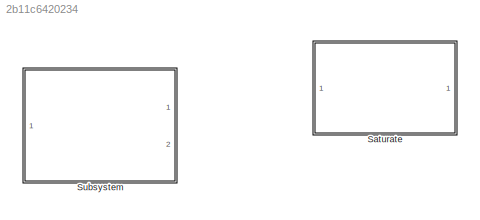
MODEL slx_2b11c6420234
KIND library
CONFIG AbsTol = auto
CONFIG EnableMultiTasking = off
CONFIG FixedStep = auto
CONFIG MaxStep = auto
CONFIG MinStep = auto
CONFIG RelTol = 1e-3
CONFIG SampleTimeConstraint = Unconstrained
CONFIG Solver = VariableStepAuto
CONFIG SolverName = VariableStepAuto
CONFIG StartTime = 0.0
CONFIG StopTime = 10.0
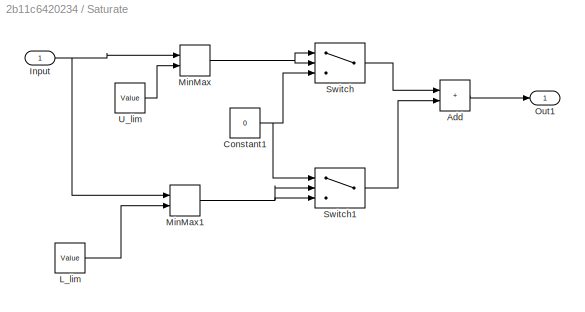
BLOCK [SubSystem] Saturate
  Ports = [1, 1]
  RequestExecContextInheritance = off
BLOCK [Sum] Saturate/Add
  IconShape = rectangular
  Ports = [2, 1]
BLOCK [Constant] Saturate/Constant1
  Value = 0
BLOCK [Inport] Saturate/Input
BLOCK [Constant] Saturate/L_lim
  Value = Value
BLOCK [MinMax] Saturate/MinMax
  Inputs = 2
  Ports = [2, 1]
BLOCK [MinMax] Saturate/MinMax1
  Function = max
  Inputs = 2
  Ports = [2, 1]
BLOCK [Outport] Saturate/Out1
BLOCK [Switch] Saturate/Switch
  InputSameDT = off
  SaturateOnIntegerOverflow = off
BLOCK [Switch] Saturate/Switch1
  InputSameDT = off
  SaturateOnIntegerOverflow = off
BLOCK [Constant] Saturate/U_lim
  Value = Value
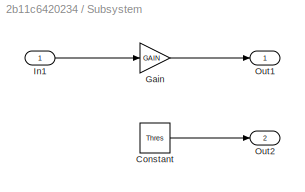
BLOCK [SubSystem] Subsystem
  Ports = [1, 2]
  RequestExecContextInheritance = off
BLOCK [Constant] Subsystem/Constant
  Value = Thres
BLOCK [Gain] Subsystem/Gain
  Gain = GAIN
BLOCK [Inport] Subsystem/In1
BLOCK [Outport] Subsystem/Out1
BLOCK [Outport] Subsystem/Out2
  Port = 2
LINE Saturate/Add:1 -> Saturate/Out1:1
NET Saturate/Constant1:1 -> Saturate/Switch1:1, Saturate/Switch:3
NET Saturate/Input:1 -> Saturate/MinMax1:1, Saturate/MinMax:1
LINE Saturate/L_lim:1 -> Saturate/MinMax1:2
NET Saturate/MinMax1:1 -> Saturate/Switch1:2, Saturate/Switch1:3
NET Saturate/MinMax:1 -> Saturate/Switch:1, Saturate/Switch:2
LINE Saturate/Switch1:1 -> Saturate/Add:2
LINE Saturate/Switch:1 -> Saturate/Add:1
LINE Saturate/U_lim:1 -> Saturate/MinMax:2
LINE Subsystem/Constant:1 -> Subsystem/Out2:1
LINE Subsystem/Gain:1 -> Subsystem/Out1:1
LINE Subsystem/In1:1 -> Subsystem/Gain:1
note: NET lines group one-source signal fan-out (src -> all destinations, sorted); 1:1 wires keep LINE
